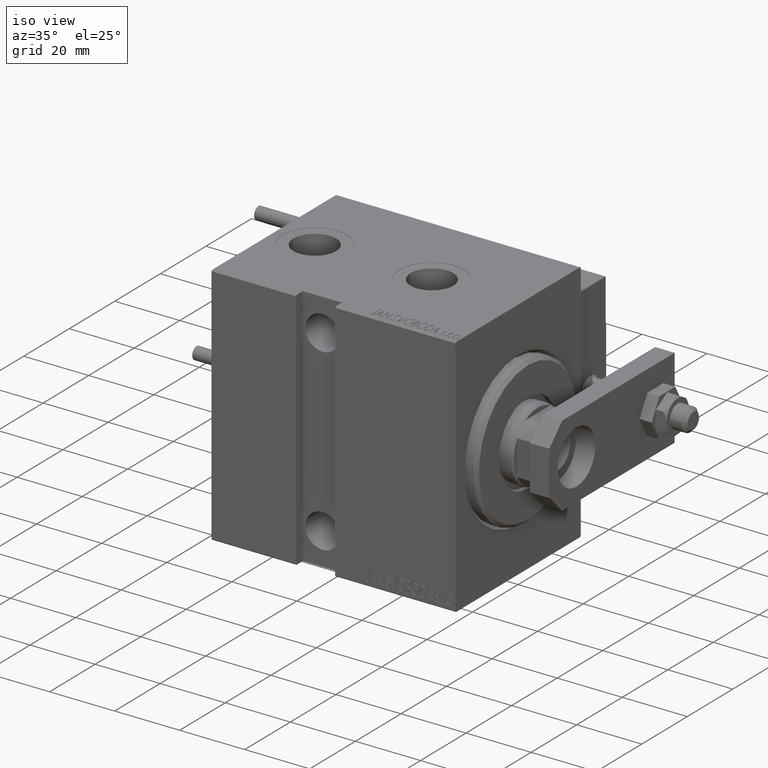
[diagram: clean part render]
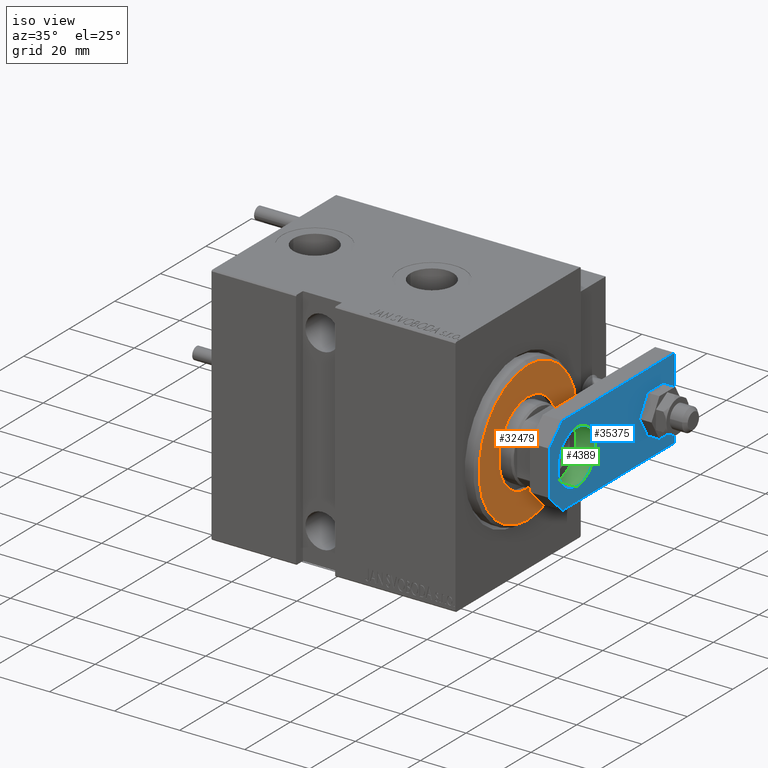
[diagram: same view with three faces highlighted in distinct colors, each labeled with its STEP entity id]
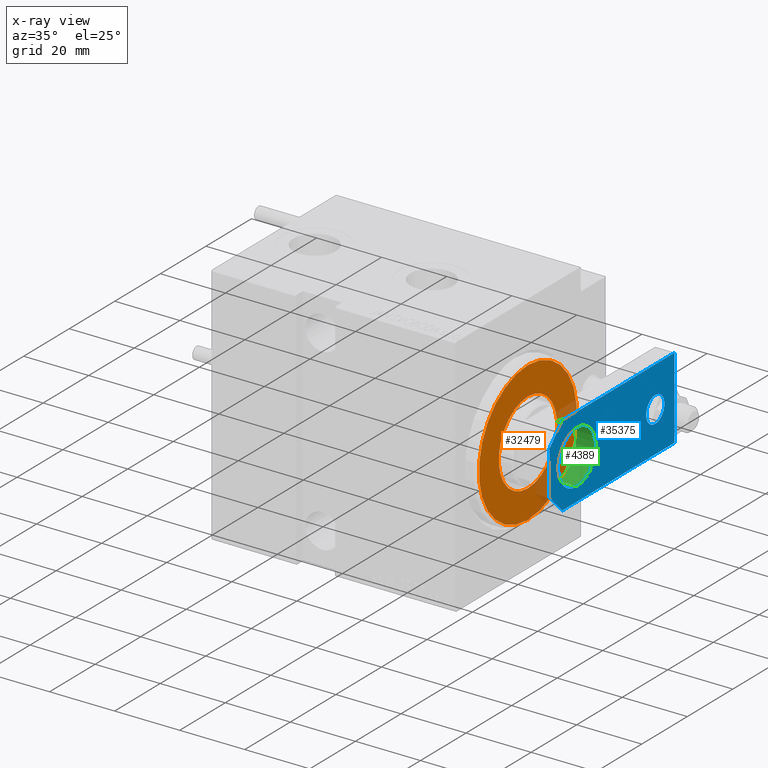
[diagram: x-ray of the same camera — body ghosted, the three highlighted faces saturated]
A machine part, iso view with three faces highlighted in distinct colors.
The next image is the same camera in x-ray (body ghosted, the three faces saturated) — at least one of them is partly hidden behind the body in this view.
Their STEP definitions:

[orange] entity #32479 — the highlighted planar face has unit normal (1, 0, 0).
#312 = ORIENTED_EDGE ( 'NONE', *, *, #27309, .T. ) ;
#881 = VERTEX_POINT ( 'NONE', #10718 ) ;
#2684 = DIRECTION ( 'NONE',  ( 0.000000000000000000, 0.000000000000000000, -1.000000000000000000 ) ) ;
#5980 = ORIENTED_EDGE ( 'NONE', *, *, #13236, .T. ) ;
#6699 = DIRECTION ( 'NONE',  ( 1.000000000000000000, -0.000000000000000000, 0.000000000000000000 ) ) ;
#7630 = CARTESIAN_POINT ( 'NONE',  ( 3.000000000000000000, 0.000000000000000000, 0.000000000000000000 ) ) ;
#7778 = DIRECTION ( 'NONE',  ( 0.000000000000000000, 0.000000000000000000, -1.000000000000000000 ) ) ;
#8932 = CIRCLE ( 'NONE', #12143, 21.49999999999998579 ) ;
#9382 = AXIS2_PLACEMENT_3D ( 'NONE', #7630, #18982, #11175 ) ;
#10093 = ORIENTED_EDGE ( 'NONE', *, *, #38532, .T. ) ;
#10718 = CARTESIAN_POINT ( 'NONE',  ( 3.000000000000000000, 0.000000000000000000, 12.75000000000000000 ) ) ;
#10828 = PLANE ( 'NONE',  #37535 ) ;
#11175 = DIRECTION ( 'NONE',  ( 0.000000000000000000, 0.000000000000000000, -1.000000000000000000 ) ) ;
#12143 = AXIS2_PLACEMENT_3D ( 'NONE', #34248, #15883, #30471 ) ;
#12149 = AXIS2_PLACEMENT_3D ( 'NONE', #39123, #46198, #30326 ) ;
#13236 = EDGE_CURVE ( 'NONE', #881, #34551, #40750, .T. ) ;
#15883 = DIRECTION ( 'NONE',  ( 1.000000000000000000, -0.000000000000000000, 0.000000000000000000 ) ) ;
#17099 = CARTESIAN_POINT ( 'NONE',  ( 3.000000000000000000, 2.694222958124176415E-15, -21.49999999999998579 ) ) ;
#18616 = ORIENTED_EDGE ( 'NONE', *, *, #45942, .T. ) ;
#18982 = DIRECTION ( 'NONE',  ( -1.000000000000000000, 0.000000000000000000, -0.000000000000000000 ) ) ;
#21551 = VERTEX_POINT ( 'NONE', #43510 ) ;
#26190 = DIRECTION ( 'NONE',  ( 1.000000000000000000, -0.000000000000000000, 0.000000000000000000 ) ) ;
#27309 = EDGE_CURVE ( 'NONE', #34551, #881, #40310, .T. ) ;
#30326 = DIRECTION ( 'NONE',  ( 0.000000000000000000, 0.000000000000000000, -1.000000000000000000 ) ) ;
#30471 = DIRECTION ( 'NONE',  ( 0.000000000000000000, 0.000000000000000000, -1.000000000000000000 ) ) ;
#32479 = ADVANCED_FACE ( 'NONE', ( #49618, #42304 ), #10828, .T. ) ;
#32760 = VERTEX_POINT ( 'NONE', #17099 ) ;
#34248 = CARTESIAN_POINT ( 'NONE',  ( 3.000000000000000000, 0.000000000000000000, 0.000000000000000000 ) ) ;
#34551 = VERTEX_POINT ( 'NONE', #37566 ) ;
#35336 = CIRCLE ( 'NONE', #41789, 21.49999999999998579 ) ;
#37535 = AXIS2_PLACEMENT_3D ( 'NONE', #38267, #26190, #7778 ) ;
#37566 = CARTESIAN_POINT ( 'NONE',  ( 3.000000000000000000, 1.561424668912874914E-15, -12.75000000000000000 ) ) ;
#37684 = CARTESIAN_POINT ( 'NONE',  ( 3.000000000000000000, 0.000000000000000000, 0.000000000000000000 ) ) ;
#38267 = CARTESIAN_POINT ( 'NONE',  ( 3.000000000000000000, 0.000000000000000000, 0.000000000000000000 ) ) ;
#38532 = EDGE_CURVE ( 'NONE', #21551, #32760, #35336, .T. ) ;
#39123 = CARTESIAN_POINT ( 'NONE',  ( 3.000000000000000000, 0.000000000000000000, 0.000000000000000000 ) ) ;
#40310 = CIRCLE ( 'NONE', #12149, 12.75000000000000000 ) ;
#40750 = CIRCLE ( 'NONE', #9382, 12.75000000000000000 ) ;
#40944 = EDGE_LOOP ( 'NONE', ( #5980, #312 ) ) ;
#41789 = AXIS2_PLACEMENT_3D ( 'NONE', #37684, #6699, #2684 ) ;
#42304 = FACE_BOUND ( 'NONE', #40944, .T. ) ;
#43510 = CARTESIAN_POINT ( 'NONE',  ( 3.000000000000000000, 0.000000000000000000, 21.49999999999998579 ) ) ;
#43928 = EDGE_LOOP ( 'NONE', ( #10093, #18616 ) ) ;
#45942 = EDGE_CURVE ( 'NONE', #32760, #21551, #8932, .T. ) ;
#46198 = DIRECTION ( 'NONE',  ( -1.000000000000000000, 0.000000000000000000, -0.000000000000000000 ) ) ;
#49618 = FACE_OUTER_BOUND ( 'NONE', #43928, .T. ) ;

[blue] entity #35375 — the highlighted planar face has unit normal (1, 0, -0).
#126 = DIRECTION ( 'NONE',  ( 0.7071067811865483499, 0.7071067811865465735, -0.000000000000000000 ) ) ;
#1071 = CARTESIAN_POINT ( 'NONE',  ( 6.839999999999998970, 4.814824860968089633E-32, 6.000000000000000000 ) ) ;
#1676 = LINE ( 'NONE', #24605, #25055 ) ;
#1800 = CARTESIAN_POINT ( 'NONE',  ( -9.629649721936179265E-32, 11.99999999999999645, 6.000000000000000000 ) ) ;
#1991 = EDGE_LOOP ( 'NONE', ( #40255, #9302 ) ) ;
#2004 = CARTESIAN_POINT ( 'NONE',  ( 8.250000000000000000, 11.99999999999999822, 6.000000000000000000 ) ) ;
#2515 = CIRCLE ( 'NONE', #27463, 4.000000000000000888 ) ;
#2609 = VERTEX_POINT ( 'NONE', #1071 ) ;
#3699 = VERTEX_POINT ( 'NONE', #2004 ) ;
#5004 = EDGE_CURVE ( 'NONE', #7776, #3699, #14051, .T. ) ;
#5129 = CARTESIAN_POINT ( 'NONE',  ( 3.419999999999990603, -3.419999999999999485, 6.000000000000000000 ) ) ;
#6096 = DIRECTION ( 'NONE',  ( 1.000000000000000000, 0.000000000000000000, 0.000000000000000000 ) ) ;
#6478 = ORIENTED_EDGE ( 'NONE', *, *, #5004, .F. ) ;
#7643 = CARTESIAN_POINT ( 'NONE',  ( -1.432611055310774642E-16, 46.50000000000000000, 6.000000000000000000 ) ) ;
#7776 = VERTEX_POINT ( 'NONE', #14485 ) ;
#7834 = LINE ( 'NONE', #45654, #9010 ) ;
#8731 = VECTOR ( 'NONE', #20691, 1000.000000000000000 ) ;
#9010 = VECTOR ( 'NONE', #41867, 1000.000000000000000 ) ;
#9302 = ORIENTED_EDGE ( 'NONE', *, *, #49041, .F. ) ;
#9995 = FACE_BOUND ( 'NONE', #1991, .T. ) ;
#10424 = VECTOR ( 'NONE', #126, 1000.000000000000114 ) ;
#11017 = ORIENTED_EDGE ( 'NONE', *, *, #31110, .T. ) ;
#12807 = VECTOR ( 'NONE', #46178, 1000.000000000000000 ) ;
#12808 = CARTESIAN_POINT ( 'NONE',  ( -4.000000000000000888, 46.50000000000000000, 6.000000000000000000 ) ) ;
#14051 = CIRCLE ( 'NONE', #18075, 8.250000000000000000 ) ;
#14485 = CARTESIAN_POINT ( 'NONE',  ( -8.250000000000000000, 11.99999999999999645, 6.000000000000000000 ) ) ;
#15926 = VERTEX_POINT ( 'NONE', #26017 ) ;
#15945 = AXIS2_PLACEMENT_3D ( 'NONE', #40738, #49297, #33672 ) ;
#15956 = CARTESIAN_POINT ( 'NONE',  ( 12.50000000000000355, 4.814824860968089633E-32, 6.000000000000000000 ) ) ;
#16517 = CARTESIAN_POINT ( 'NONE',  ( 12.50000000000000000, 55.00000000000000000, 6.000000000000000000 ) ) ;
#18075 = AXIS2_PLACEMENT_3D ( 'NONE', #33175, #26610, #26108 ) ;
#18801 = EDGE_CURVE ( 'NONE', #29579, #49131, #24221, .T. ) ;
#20226 = EDGE_CURVE ( 'NONE', #15926, #47384, #30304, .T. ) ;
#20259 = ORIENTED_EDGE ( 'NONE', *, *, #20226, .T. ) ;
#20315 = AXIS2_PLACEMENT_3D ( 'NONE', #7643, #23027, #38390 ) ;
#20456 = ORIENTED_EDGE ( 'NONE', *, *, #45540, .T. ) ;
#20691 = DIRECTION ( 'NONE',  ( -9.462128050782584375E-17, -1.000000000000000000, 0.000000000000000000 ) ) ;
#20934 = EDGE_CURVE ( 'NONE', #2609, #15926, #39651, .T. ) ;
#20946 = DIRECTION ( 'NONE',  ( 0.000000000000000000, 0.000000000000000000, 1.000000000000000000 ) ) ;
#21297 = ORIENTED_EDGE ( 'NONE', *, *, #42911, .F. ) ;
#21485 = DIRECTION ( 'NONE',  ( 0.000000000000000000, 0.000000000000000000, 1.000000000000000000 ) ) ;
#22358 = DIRECTION ( 'NONE',  ( 0.7071067811865467956, -0.7071067811865483499, 0.000000000000000000 ) ) ;
#22853 = LINE ( 'NONE', #26879, #24225 ) ;
#23027 = DIRECTION ( 'NONE',  ( 0.000000000000000000, 0.000000000000000000, 1.000000000000000000 ) ) ;
#24221 = LINE ( 'NONE', #31274, #8731 ) ;
#24225 = VECTOR ( 'NONE', #22358, 1000.000000000000000 ) ;
#24232 = DIRECTION ( 'NONE',  ( 1.000000000000000000, 0.000000000000000000, 0.000000000000000000 ) ) ;
#24605 = CARTESIAN_POINT ( 'NONE',  ( -12.50000000000000355, 4.814824860968089633E-32, 6.000000000000000000 ) ) ;
#25055 = VECTOR ( 'NONE', #36668, 1000.000000000000000 ) ;
#25818 = EDGE_LOOP ( 'NONE', ( #31764, #20456, #32786, #28222, #20259, #11017 ) ) ;
#25866 = FACE_OUTER_BOUND ( 'NONE', #25818, .T. ) ;
#26017 = CARTESIAN_POINT ( 'NONE',  ( 12.50000000000000355, 5.659999999999991260, 6.000000000000000000 ) ) ;
#26108 = DIRECTION ( 'NONE',  ( 1.000000000000000000, 0.000000000000000000, 0.000000000000000000 ) ) ;
#26610 = DIRECTION ( 'NONE',  ( 0.000000000000000000, 0.000000000000000000, 1.000000000000000000 ) ) ;
#26879 = CARTESIAN_POINT ( 'NONE',  ( -3.420000000000013696, -3.420000000000006146, 6.000000000000000000 ) ) ;
#27463 = AXIS2_PLACEMENT_3D ( 'NONE', #44657, #21485, #6096 ) ;
#28222 = ORIENTED_EDGE ( 'NONE', *, *, #20934, .T. ) ;
#28440 = EDGE_CURVE ( 'NONE', #31380, #37649, #2515, .T. ) ;
#29579 = VERTEX_POINT ( 'NONE', #41814 ) ;
#29893 = FACE_BOUND ( 'NONE', #48123, .T. ) ;
#30304 = LINE ( 'NONE', #15956, #12807 ) ;
#30649 = CARTESIAN_POINT ( 'NONE',  ( -6.840000000000012292, 4.814824860968089633E-32, 6.000000000000000000 ) ) ;
#31110 = EDGE_CURVE ( 'NONE', #47384, #29579, #7834, .T. ) ;
#31274 = CARTESIAN_POINT ( 'NONE',  ( -12.49999999999999822, 55.00000000000000000, 6.000000000000000000 ) ) ;
#31380 = VERTEX_POINT ( 'NONE', #12808 ) ;
#31573 = VERTEX_POINT ( 'NONE', #30649 ) ;
#31764 = ORIENTED_EDGE ( 'NONE', *, *, #18801, .T. ) ;
#32285 = AXIS2_PLACEMENT_3D ( 'NONE', #1800, #20946, #24232 ) ;
#32786 = ORIENTED_EDGE ( 'NONE', *, *, #43172, .T. ) ;
#33175 = CARTESIAN_POINT ( 'NONE',  ( -9.629649721936179265E-32, 11.99999999999999645, 6.000000000000000000 ) ) ;
#33672 = DIRECTION ( 'NONE',  ( 1.000000000000000000, 0.000000000000000000, 0.000000000000000000 ) ) ;
#35375 = ADVANCED_FACE ( 'NONE', ( #9995, #25866, #29893 ), #37452, .T. ) ;
#36668 = DIRECTION ( 'NONE',  ( 1.000000000000000000, 0.000000000000000000, 0.000000000000000000 ) ) ;
#37452 = PLANE ( 'NONE',  #15945 ) ;
#37649 = VERTEX_POINT ( 'NONE', #44754 ) ;
#38390 = DIRECTION ( 'NONE',  ( 1.000000000000000000, 0.000000000000000000, 0.000000000000000000 ) ) ;
#39651 = LINE ( 'NONE', #5129, #10424 ) ;
#40255 = ORIENTED_EDGE ( 'NONE', *, *, #28440, .F. ) ;
#40405 = CIRCLE ( 'NONE', #20315, 4.000000000000000888 ) ;
#40738 = CARTESIAN_POINT ( 'NONE',  ( 0.000000000000000000, 0.000000000000000000, 6.000000000000000000 ) ) ;
#41814 = CARTESIAN_POINT ( 'NONE',  ( -12.49999999999999822, 55.00000000000000000, 6.000000000000000000 ) ) ;
#41867 = DIRECTION ( 'NONE',  ( -1.000000000000000000, 0.000000000000000000, 0.000000000000000000 ) ) ;
#42911 = EDGE_CURVE ( 'NONE', #3699, #7776, #45177, .T. ) ;
#43172 = EDGE_CURVE ( 'NONE', #31573, #2609, #1676, .T. ) ;
#43910 = CARTESIAN_POINT ( 'NONE',  ( -12.50000000000000355, 5.660000000000005471, 6.000000000000000000 ) ) ;
#44657 = CARTESIAN_POINT ( 'NONE',  ( -1.432611055310774642E-16, 46.50000000000000000, 6.000000000000000000 ) ) ;
#44754 = CARTESIAN_POINT ( 'NONE',  ( 4.000000000000000888, 46.50000000000000000, 6.000000000000000000 ) ) ;
#45177 = CIRCLE ( 'NONE', #32285, 8.250000000000000000 ) ;
#45540 = EDGE_CURVE ( 'NONE', #49131, #31573, #22853, .T. ) ;
#45654 = CARTESIAN_POINT ( 'NONE',  ( 12.50000000000000000, 55.00000000000000000, 6.000000000000000000 ) ) ;
#46178 = DIRECTION ( 'NONE',  ( -6.308085367188389994E-17, 1.000000000000000000, 0.000000000000000000 ) ) ;
#47384 = VERTEX_POINT ( 'NONE', #16517 ) ;
#48123 = EDGE_LOOP ( 'NONE', ( #6478, #21297 ) ) ;
#49041 = EDGE_CURVE ( 'NONE', #37649, #31380, #40405, .T. ) ;
#49131 = VERTEX_POINT ( 'NONE', #43910 ) ;
#49297 = DIRECTION ( 'NONE',  ( -0.000000000000000000, 0.000000000000000000, 1.000000000000000000 ) ) ;

[green] entity #4389 — the highlighted cylindrical surface (edge-blend (fillet) strip) has radius 8.25 mm, axis along (-1, -0, 0).
#1800 = CARTESIAN_POINT ( 'NONE',  ( -9.629649721936179265E-32, 11.99999999999999645, 6.000000000000000000 ) ) ;
#1976 = CARTESIAN_POINT ( 'NONE',  ( 8.250000000000000000, 11.99999999999999822, 6.000000000000000000 ) ) ;
#2004 = CARTESIAN_POINT ( 'NONE',  ( 8.250000000000000000, 11.99999999999999822, 6.000000000000000000 ) ) ;
#2805 = VERTEX_POINT ( 'NONE', #9867 ) ;
#3699 = VERTEX_POINT ( 'NONE', #2004 ) ;
#4360 = AXIS2_PLACEMENT_3D ( 'NONE', #16640, #42593, #35270 ) ;
#4389 = ADVANCED_FACE ( 'NONE', ( #4539 ), #23197, .F. ) ;
#4539 = FACE_OUTER_BOUND ( 'NONE', #38892, .T. ) ;
#7564 = CARTESIAN_POINT ( 'NONE',  ( -8.250000000000000000, 11.99999999999999645, 6.000000000000000000 ) ) ;
#7776 = VERTEX_POINT ( 'NONE', #14485 ) ;
#8253 = CIRCLE ( 'NONE', #21137, 8.250000000000000000 ) ;
#9867 = CARTESIAN_POINT ( 'NONE',  ( 8.250000000000000000, 11.99999999999999822, 0.000000000000000000 ) ) ;
#10418 = VECTOR ( 'NONE', #24662, 1000.000000000000000 ) ;
#11573 = ORIENTED_EDGE ( 'NONE', *, *, #49303, .F. ) ;
#12803 = CARTESIAN_POINT ( 'NONE',  ( -9.629649721936179265E-32, 11.99999999999999645, 0.000000000000000000 ) ) ;
#13338 = LINE ( 'NONE', #1976, #10418 ) ;
#14485 = CARTESIAN_POINT ( 'NONE',  ( -8.250000000000000000, 11.99999999999999645, 6.000000000000000000 ) ) ;
#15419 = DIRECTION ( 'NONE',  ( -0.000000000000000000, -0.000000000000000000, -1.000000000000000000 ) ) ;
#16640 = CARTESIAN_POINT ( 'NONE',  ( -9.629649721936179265E-32, 11.99999999999999645, 6.000000000000000000 ) ) ;
#20946 = DIRECTION ( 'NONE',  ( 0.000000000000000000, 0.000000000000000000, 1.000000000000000000 ) ) ;
#21137 = AXIS2_PLACEMENT_3D ( 'NONE', #12803, #35958, #28400 ) ;
#21950 = VERTEX_POINT ( 'NONE', #33350 ) ;
#22019 = ORIENTED_EDGE ( 'NONE', *, *, #47578, .T. ) ;
#23197 = CYLINDRICAL_SURFACE ( 'NONE', #4360, 8.250000000000000000 ) ;
#24232 = DIRECTION ( 'NONE',  ( 1.000000000000000000, 0.000000000000000000, 0.000000000000000000 ) ) ;
#24662 = DIRECTION ( 'NONE',  ( -0.000000000000000000, -0.000000000000000000, -1.000000000000000000 ) ) ;
#24745 = EDGE_CURVE ( 'NONE', #3699, #2805, #13338, .T. ) ;
#25530 = ORIENTED_EDGE ( 'NONE', *, *, #42911, .T. ) ;
#28400 = DIRECTION ( 'NONE',  ( 1.000000000000000000, 0.000000000000000000, 0.000000000000000000 ) ) ;
#32285 = AXIS2_PLACEMENT_3D ( 'NONE', #1800, #20946, #24232 ) ;
#33350 = CARTESIAN_POINT ( 'NONE',  ( -8.250000000000000000, 11.99999999999999645, 0.000000000000000000 ) ) ;
#35270 = DIRECTION ( 'NONE',  ( -1.000000000000000000, 0.000000000000000000, 0.000000000000000000 ) ) ;
#35958 = DIRECTION ( 'NONE',  ( 0.000000000000000000, 0.000000000000000000, 1.000000000000000000 ) ) ;
#38892 = EDGE_LOOP ( 'NONE', ( #48766, #25530, #22019, #11573 ) ) ;
#42593 = DIRECTION ( 'NONE',  ( -0.000000000000000000, -0.000000000000000000, -1.000000000000000000 ) ) ;
#42911 = EDGE_CURVE ( 'NONE', #3699, #7776, #45177, .T. ) ;
#45177 = CIRCLE ( 'NONE', #32285, 8.250000000000000000 ) ;
#45882 = LINE ( 'NONE', #7564, #48394 ) ;
#47578 = EDGE_CURVE ( 'NONE', #7776, #21950, #45882, .T. ) ;
#48394 = VECTOR ( 'NONE', #15419, 1000.000000000000000 ) ;
#48766 = ORIENTED_EDGE ( 'NONE', *, *, #24745, .F. ) ;
#49303 = EDGE_CURVE ( 'NONE', #2805, #21950, #8253, .T. ) ;